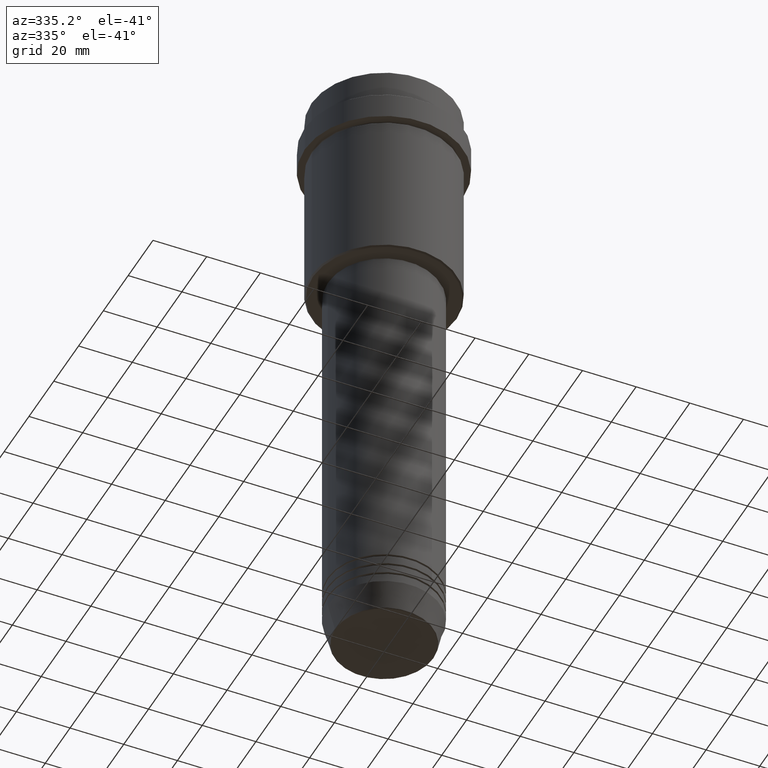
[diagram: clean part render]
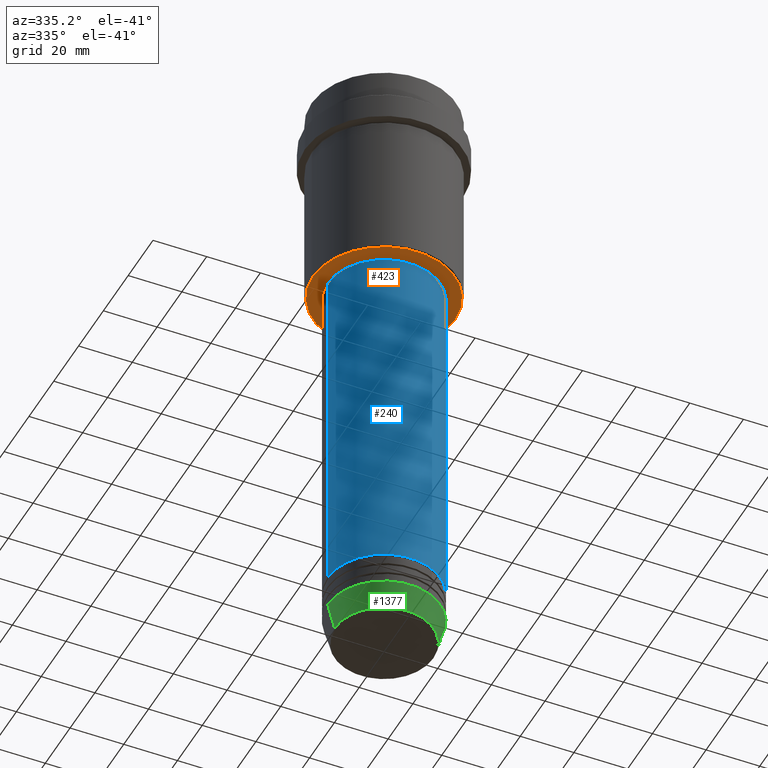
[diagram: same view with three faces highlighted in distinct colors, each labeled with its STEP entity id]
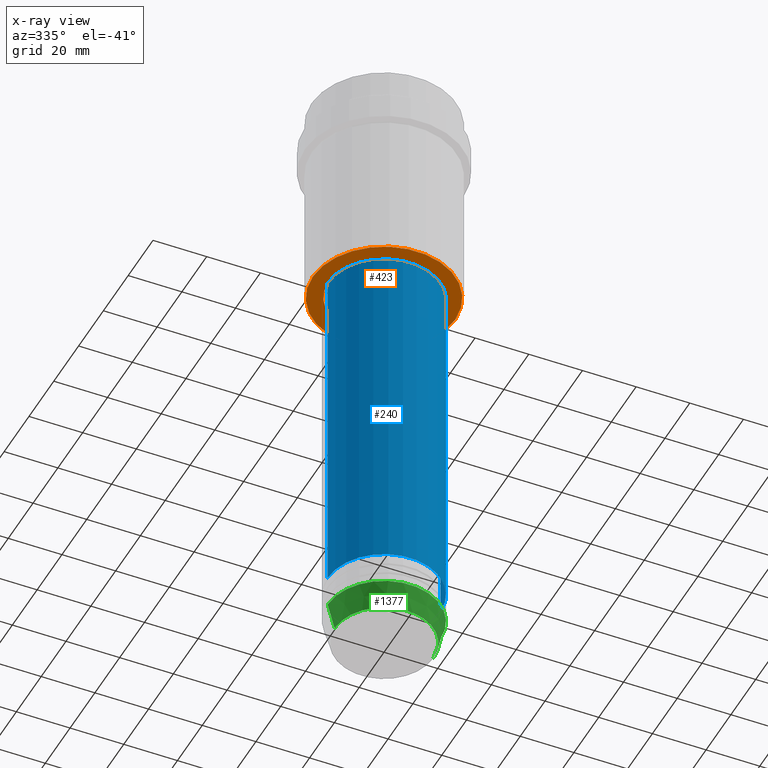
[diagram: x-ray of the same camera — body ghosted, the three highlighted faces saturated]
A machine part, auxiliary view with three faces highlighted in distinct colors.
The next image is the same camera in x-ray (body ghosted, the three faces saturated) — at least one of them is partly hidden behind the body in this view.
Their STEP definitions:

[orange] entity #423 — the highlighted planar face has unit normal (0, 0, -1).
#127 = DIRECTION ( 'NONE',  ( -1.000000000000000000, 0.000000000000000000, 0.000000000000000000 ) ) ;
#207 = FACE_OUTER_BOUND ( 'NONE', #990, .T. ) ;
#218 = CARTESIAN_POINT ( 'NONE',  ( 0.000000000000000000, 0.000000000000000000, -78.00000000000001421 ) ) ;
#219 = AXIS2_PLACEMENT_3D ( 'NONE', #1219, #253, #127 ) ;
#220 = CARTESIAN_POINT ( 'NONE',  ( 0.000000000000000000, 0.000000000000000000, -78.00000000000001421 ) ) ;
#250 = DIRECTION ( 'NONE',  ( 1.000000000000000000, 0.000000000000000000, 0.000000000000000000 ) ) ;
#253 = DIRECTION ( 'NONE',  ( 0.000000000000000000, 0.000000000000000000, -1.000000000000000000 ) ) ;
#260 = CIRCLE ( 'NONE', #219, 26.49999999999999645 ) ;
#304 = CARTESIAN_POINT ( 'NONE',  ( 20.49999999999999289, 0.000000000000000000, -78.00000000000001421 ) ) ;
#377 = VERTEX_POINT ( 'NONE', #1308 ) ;
#383 = VERTEX_POINT ( 'NONE', #304 ) ;
#405 = AXIS2_PLACEMENT_3D ( 'NONE', #218, #523, #418 ) ;
#418 = DIRECTION ( 'NONE',  ( 1.000000000000000000, 0.000000000000000000, 0.000000000000000000 ) ) ;
#423 = ADVANCED_FACE ( 'NONE', ( #207, #1067 ), #1058, .T. ) ;
#520 = DIRECTION ( 'NONE',  ( 0.000000000000000000, 0.000000000000000000, -1.000000000000000000 ) ) ;
#523 = DIRECTION ( 'NONE',  ( -0.000000000000000000, -0.000000000000000000, 1.000000000000000000 ) ) ;
#524 = DIRECTION ( 'NONE',  ( -1.000000000000000000, 0.000000000000000000, 0.000000000000000000 ) ) ;
#545 = CARTESIAN_POINT ( 'NONE',  ( -26.49999999999999645, 3.275930187719169552E-15, -78.00000000000001421 ) ) ;
#570 = AXIS2_PLACEMENT_3D ( 'NONE', #220, #623, #524 ) ;
#598 = EDGE_LOOP ( 'NONE', ( #764, #731 ) ) ;
#600 = EDGE_CURVE ( 'NONE', #1000, #1294, #260, .T. ) ;
#623 = DIRECTION ( 'NONE',  ( 0.000000000000000000, 0.000000000000000000, -1.000000000000000000 ) ) ;
#731 = ORIENTED_EDGE ( 'NONE', *, *, #879, .T. ) ;
#740 = CARTESIAN_POINT ( 'NONE',  ( 26.49999999999999645, 0.000000000000000000, -78.00000000000001421 ) ) ;
#748 = EDGE_CURVE ( 'NONE', #1294, #1000, #977, .T. ) ;
#764 = ORIENTED_EDGE ( 'NONE', *, *, #1266, .T. ) ;
#813 = AXIS2_PLACEMENT_3D ( 'NONE', #973, #520, #1177 ) ;
#879 = EDGE_CURVE ( 'NONE', #377, #383, #1093, .T. ) ;
#973 = CARTESIAN_POINT ( 'NONE',  ( 0.000000000000000000, 27.00000000000000355, -78.00000000000001421 ) ) ;
#977 = CIRCLE ( 'NONE', #570, 26.49999999999999645 ) ;
#986 = DIRECTION ( 'NONE',  ( -0.000000000000000000, -0.000000000000000000, 1.000000000000000000 ) ) ;
#990 = EDGE_LOOP ( 'NONE', ( #1276, #1217 ) ) ;
#1000 = VERTEX_POINT ( 'NONE', #545 ) ;
#1058 = PLANE ( 'NONE',  #813 ) ;
#1067 = FACE_BOUND ( 'NONE', #598, .T. ) ;
#1093 = CIRCLE ( 'NONE', #1291, 20.49999999999999289 ) ;
#1177 = DIRECTION ( 'NONE',  ( -1.000000000000000000, 0.000000000000000000, -0.000000000000000000 ) ) ;
#1201 = CARTESIAN_POINT ( 'NONE',  ( 0.000000000000000000, 0.000000000000000000, -78.00000000000001421 ) ) ;
#1217 = ORIENTED_EDGE ( 'NONE', *, *, #600, .T. ) ;
#1219 = CARTESIAN_POINT ( 'NONE',  ( 0.000000000000000000, 0.000000000000000000, -78.00000000000001421 ) ) ;
#1266 = EDGE_CURVE ( 'NONE', #383, #377, #1390, .T. ) ;
#1276 = ORIENTED_EDGE ( 'NONE', *, *, #748, .T. ) ;
#1291 = AXIS2_PLACEMENT_3D ( 'NONE', #1201, #986, #250 ) ;
#1294 = VERTEX_POINT ( 'NONE', #740 ) ;
#1308 = CARTESIAN_POINT ( 'NONE',  ( -20.49999999999999289, 2.510525938252073298E-15, -78.00000000000001421 ) ) ;
#1390 = CIRCLE ( 'NONE', #405, 20.49999999999999289 ) ;

[blue] entity #240 — the highlighted cylindrical surface (partial cylindrical patch) has radius 21 mm, axis along (-0, -0, 1).
#46 = VERTEX_POINT ( 'NONE', #684 ) ;
#203 = CARTESIAN_POINT ( 'NONE',  ( -21.00000000000000000, 2.571758278209441661E-15, -210.9999999999999432 ) ) ;
#214 = CARTESIAN_POINT ( 'NONE',  ( -21.00000000000000000, 2.571758278209441661E-15, 0.000000000000000000 ) ) ;
#240 = ADVANCED_FACE ( 'NONE', ( #1275 ), #481, .T. ) ;
#329 = AXIS2_PLACEMENT_3D ( 'NONE', #389, #689, #1259 ) ;
#333 = VECTOR ( 'NONE', #432, 1000.000000000000000 ) ;
#350 = EDGE_CURVE ( 'NONE', #464, #46, #427, .T. ) ;
#358 = DIRECTION ( 'NONE',  ( 1.000000000000000000, 0.000000000000000000, 0.000000000000000000 ) ) ;
#365 = DIRECTION ( 'NONE',  ( -0.000000000000000000, -0.000000000000000000, 1.000000000000000000 ) ) ;
#389 = CARTESIAN_POINT ( 'NONE',  ( 0.000000000000000000, 0.000000000000000000, 0.000000000000000000 ) ) ;
#427 = LINE ( 'NONE', #546, #1163 ) ;
#432 = DIRECTION ( 'NONE',  ( -0.000000000000000000, -0.000000000000000000, 1.000000000000000000 ) ) ;
#433 = DIRECTION ( 'NONE',  ( -0.000000000000000000, -0.000000000000000000, 1.000000000000000000 ) ) ;
#455 = ORIENTED_EDGE ( 'NONE', *, *, #492, .T. ) ;
#464 = VERTEX_POINT ( 'NONE', #958 ) ;
#481 = CYLINDRICAL_SURFACE ( 'NONE', #329, 21.00000000000000000 ) ;
#486 = CARTESIAN_POINT ( 'NONE',  ( -21.00000000000000000, 2.571758278209441661E-15, -79.00000000000001421 ) ) ;
#492 = EDGE_CURVE ( 'NONE', #1215, #464, #548, .T. ) ;
#546 = CARTESIAN_POINT ( 'NONE',  ( 21.00000000000000000, 0.000000000000000000, 0.000000000000000000 ) ) ;
#548 = CIRCLE ( 'NONE', #569, 21.00000000000000000 ) ;
#569 = AXIS2_PLACEMENT_3D ( 'NONE', #1004, #365, #358 ) ;
#573 = EDGE_LOOP ( 'NONE', ( #1306, #455, #913, #1396 ) ) ;
#684 = CARTESIAN_POINT ( 'NONE',  ( 21.00000000000000000, 0.000000000000000000, -79.00000000000001421 ) ) ;
#689 = DIRECTION ( 'NONE',  ( -0.000000000000000000, -0.000000000000000000, 1.000000000000000000 ) ) ;
#723 = AXIS2_PLACEMENT_3D ( 'NONE', #1048, #734, #1176 ) ;
#734 = DIRECTION ( 'NONE',  ( -0.000000000000000000, -0.000000000000000000, 1.000000000000000000 ) ) ;
#787 = EDGE_CURVE ( 'NONE', #1134, #46, #931, .T. ) ;
#811 = EDGE_CURVE ( 'NONE', #1215, #1134, #1056, .T. ) ;
#913 = ORIENTED_EDGE ( 'NONE', *, *, #350, .T. ) ;
#931 = CIRCLE ( 'NONE', #723, 21.00000000000000000 ) ;
#958 = CARTESIAN_POINT ( 'NONE',  ( 21.00000000000000000, 0.000000000000000000, -210.9999999999999432 ) ) ;
#1004 = CARTESIAN_POINT ( 'NONE',  ( 0.000000000000000000, 0.000000000000000000, -210.9999999999999432 ) ) ;
#1048 = CARTESIAN_POINT ( 'NONE',  ( 0.000000000000000000, 0.000000000000000000, -79.00000000000001421 ) ) ;
#1056 = LINE ( 'NONE', #214, #333 ) ;
#1134 = VERTEX_POINT ( 'NONE', #486 ) ;
#1163 = VECTOR ( 'NONE', #433, 1000.000000000000000 ) ;
#1176 = DIRECTION ( 'NONE',  ( 1.000000000000000000, 0.000000000000000000, 0.000000000000000000 ) ) ;
#1215 = VERTEX_POINT ( 'NONE', #203 ) ;
#1259 = DIRECTION ( 'NONE',  ( 1.000000000000000000, 0.000000000000000000, 0.000000000000000000 ) ) ;
#1275 = FACE_OUTER_BOUND ( 'NONE', #573, .T. ) ;
#1306 = ORIENTED_EDGE ( 'NONE', *, *, #811, .F. ) ;
#1396 = ORIENTED_EDGE ( 'NONE', *, *, #787, .F. ) ;

[green] entity #1377 — the highlighted conical surface has half-angle 15 deg.
#20 = DIRECTION ( 'NONE',  ( -0.000000000000000000, -0.000000000000000000, 1.000000000000000000 ) ) ;
#25 = CARTESIAN_POINT ( 'NONE',  ( 21.00000000000000000, 0.000000000000000000, -223.0000000000000284 ) ) ;
#30 = FACE_OUTER_BOUND ( 'NONE', #761, .T. ) ;
#44 = CARTESIAN_POINT ( 'NONE',  ( 21.00000000000000000, 0.000000000000000000, -223.0000000000000284 ) ) ;
#62 = EDGE_CURVE ( 'NONE', #1300, #221, #258, .T. ) ;
#106 = EDGE_CURVE ( 'NONE', #206, #1300, #775, .T. ) ;
#121 = CARTESIAN_POINT ( 'NONE',  ( 0.000000000000000000, 0.000000000000000000, -223.0000000000000284 ) ) ;
#206 = VERTEX_POINT ( 'NONE', #400 ) ;
#221 = VERTEX_POINT ( 'NONE', #44 ) ;
#258 = CIRCLE ( 'NONE', #328, 21.00000000000000000 ) ;
#312 = ORIENTED_EDGE ( 'NONE', *, *, #62, .F. ) ;
#328 = AXIS2_PLACEMENT_3D ( 'NONE', #121, #461, #1118 ) ;
#346 = DIRECTION ( 'NONE',  ( -0.2588190451025205729, 3.169619151431761860E-17, 0.9659258262890683122 ) ) ;
#356 = CARTESIAN_POINT ( 'NONE',  ( 0.000000000000000000, 0.000000000000000000, -223.0000000000000284 ) ) ;
#400 = CARTESIAN_POINT ( 'NONE',  ( -18.41980749484382329, 2.413767053578266669E-15, -232.6294095225512990 ) ) ;
#461 = DIRECTION ( 'NONE',  ( -0.000000000000000000, -0.000000000000000000, 1.000000000000000000 ) ) ;
#565 = CARTESIAN_POINT ( 'NONE',  ( -21.00000000000000000, 2.571758278209441661E-15, -223.0000000000000284 ) ) ;
#590 = EDGE_CURVE ( 'NONE', #1282, #221, #880, .T. ) ;
#631 = CARTESIAN_POINT ( 'NONE',  ( -21.00000000000000000, 2.571758278209441661E-15, -223.0000000000000284 ) ) ;
#636 = VECTOR ( 'NONE', #779, 1000.000000000000114 ) ;
#669 = CIRCLE ( 'NONE', #1099, 18.41980749484382329 ) ;
#761 = EDGE_LOOP ( 'NONE', ( #803, #866, #979, #312 ) ) ;
#775 = LINE ( 'NONE', #565, #1085 ) ;
#779 = DIRECTION ( 'NONE',  ( 0.2588190451025205729, 0.000000000000000000, 0.9659258262890683122 ) ) ;
#803 = ORIENTED_EDGE ( 'NONE', *, *, #106, .F. ) ;
#846 = CONICAL_SURFACE ( 'NONE', #872, 21.00000000000000000, 0.2617993877991492413 ) ;
#866 = ORIENTED_EDGE ( 'NONE', *, *, #1202, .T. ) ;
#872 = AXIS2_PLACEMENT_3D ( 'NONE', #356, #20, #991 ) ;
#880 = LINE ( 'NONE', #25, #636 ) ;
#943 = DIRECTION ( 'NONE',  ( -0.000000000000000000, -0.000000000000000000, 1.000000000000000000 ) ) ;
#979 = ORIENTED_EDGE ( 'NONE', *, *, #590, .T. ) ;
#991 = DIRECTION ( 'NONE',  ( 1.000000000000000000, 0.000000000000000000, 0.000000000000000000 ) ) ;
#1085 = VECTOR ( 'NONE', #346, 1000.000000000000114 ) ;
#1099 = AXIS2_PLACEMENT_3D ( 'NONE', #1384, #943, #1181 ) ;
#1118 = DIRECTION ( 'NONE',  ( 1.000000000000000000, 0.000000000000000000, 0.000000000000000000 ) ) ;
#1181 = DIRECTION ( 'NONE',  ( 1.000000000000000000, 0.000000000000000000, 0.000000000000000000 ) ) ;
#1202 = EDGE_CURVE ( 'NONE', #206, #1282, #669, .T. ) ;
#1282 = VERTEX_POINT ( 'NONE', #1288 ) ;
#1288 = CARTESIAN_POINT ( 'NONE',  ( 18.41980749484382329, 0.000000000000000000, -232.6294095225512990 ) ) ;
#1300 = VERTEX_POINT ( 'NONE', #631 ) ;
#1377 = ADVANCED_FACE ( 'NONE', ( #30 ), #846, .T. ) ;
#1384 = CARTESIAN_POINT ( 'NONE',  ( 0.000000000000000000, 0.000000000000000000, -232.6294095225512990 ) ) ;